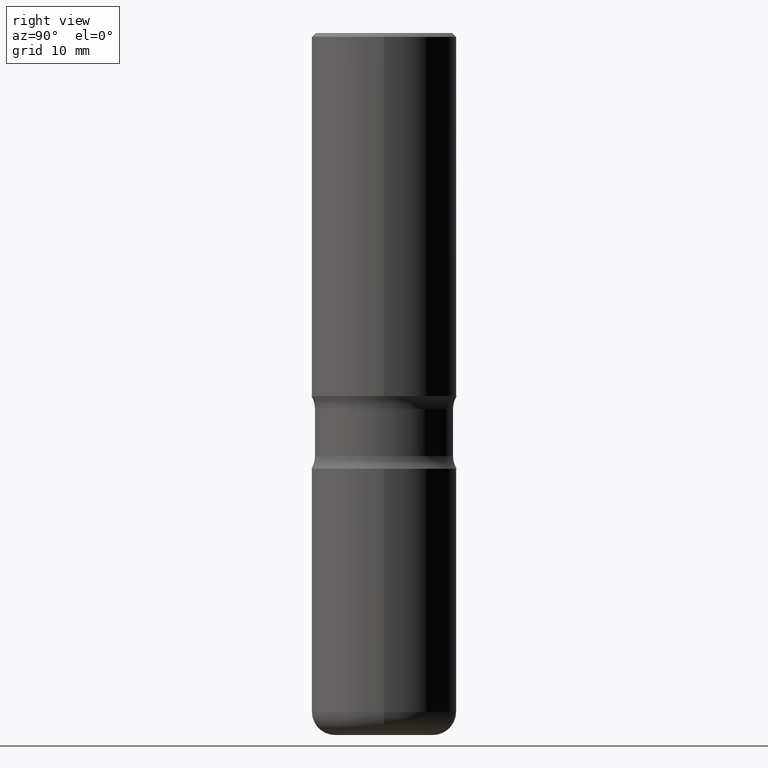
[diagram: clean part render]
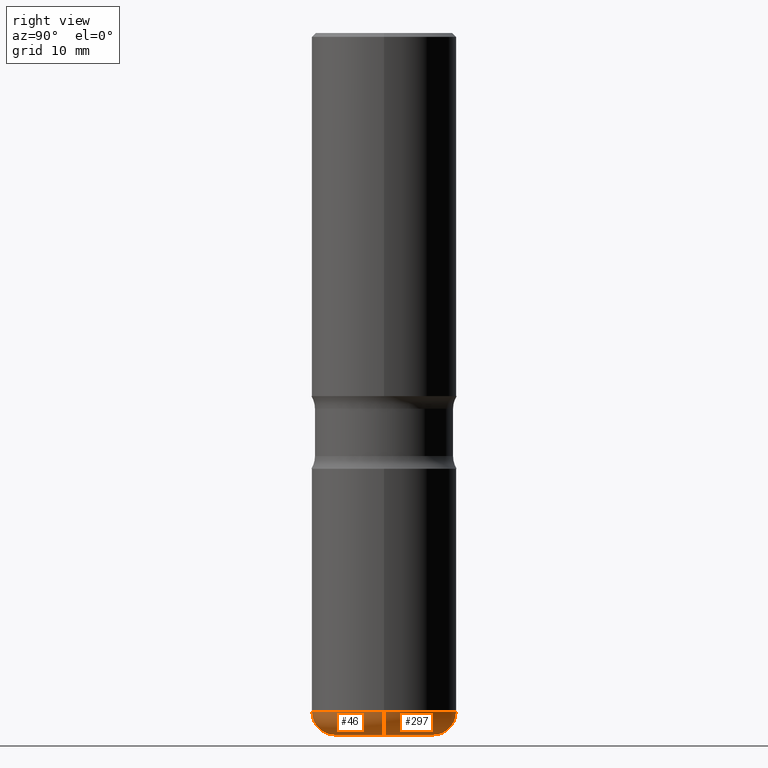
[diagram: same view with one multi-face feature highlighted, each face labeled with its STEP entity id]
A machine part, right view. The highlighted faces form ONE feature: a constant-radius fillet chain: 2 tangent blend faces with common blend radius 3.048 mm. The faces share edges in the B-rep.
Their STEP definitions:
[1] entity #297 (Torus):
#24 = VERTEX_POINT ( 'NONE', #412 ) ;
#30 = DIRECTION ( 'NONE',  ( -2.445468806185136597E-29, 3.491481338843145583E-15, 1.000000000000000000 ) ) ;
#49 = FACE_OUTER_BOUND ( 'NONE', #402, .T. ) ;
#72 = DIRECTION ( 'NONE',  ( 1.000000000000000000, -6.982962677686267499E-15, 0.000000000000000000 ) ) ;
#80 = DIRECTION ( 'NONE',  ( 7.105427357601001859E-15, 1.000000000000000000, -3.491481338843145583E-15 ) ) ;
#82 = CIRCLE ( 'NONE', #399, 0.1199999999999998845 ) ;
#98 = DIRECTION ( 'NONE',  ( -2.445468806185136597E-29, 3.491481338843145583E-15, 1.000000000000000000 ) ) ;
#157 = VERTEX_POINT ( 'NONE', #392 ) ;
#158 = CARTESIAN_POINT ( 'NONE',  ( 0.2550000000000003375, -1.401829757545522428E-14, -3.504999999999999893 ) ) ;
#181 = CARTESIAN_POINT ( 'NONE',  ( -0.3750000000000002220, -9.573106833544843947E-15, -3.504999999999999893 ) ) ;
#194 = ORIENTED_EDGE ( 'NONE', *, *, #548, .T. ) ;
#200 = VERTEX_POINT ( 'NONE', #276 ) ;
#201 = DIRECTION ( 'NONE',  ( -2.445468806185136597E-29, 3.491481338843145583E-15, 1.000000000000000000 ) ) ;
#213 = DIRECTION ( 'NONE',  ( -1.000000000000000000, 7.105427357600997914E-15, 0.000000000000000000 ) ) ;
#226 = CARTESIAN_POINT ( 'NONE',  ( 8.571368165678902740E-29, -1.223764209264522438E-14, -3.504999999999999893 ) ) ;
#255 = CARTESIAN_POINT ( 'NONE',  ( -0.2550000000000003375, -1.042575811645696493E-14, -3.504999999999999893 ) ) ;
#261 = VERTEX_POINT ( 'NONE', #181 ) ;
#276 = CARTESIAN_POINT ( 'NONE',  ( 0.2550000000000003375, -1.443727533611640092E-14, -3.624999999999999556 ) ) ;
#294 = CIRCLE ( 'NONE', #378, 0.1199999999999998845 ) ;
#297 = ADVANCED_FACE ( 'NONE', ( #49 ), #451, .T. ) ;
#299 = ORIENTED_EDGE ( 'NONE', *, *, #541, .T. ) ;
#314 = CIRCLE ( 'NONE', #467, 0.2550000000000003375 ) ;
#334 = DIRECTION ( 'NONE',  ( 1.000000000000000000, -6.982962677686258822E-15, 0.000000000000000000 ) ) ;
#343 = CIRCLE ( 'NONE', #503, 0.3750000000000002776 ) ;
#357 = AXIS2_PLACEMENT_3D ( 'NONE', #226, #98, #472 ) ;
#378 = AXIS2_PLACEMENT_3D ( 'NONE', #255, #80, #213 ) ;
#392 = CARTESIAN_POINT ( 'NONE',  ( -0.2550000000000003375, -1.020892135533149591E-14, -3.624999999999999556 ) ) ;
#395 = EDGE_CURVE ( 'NONE', #200, #24, #82, .T. ) ;
#399 = AXIS2_PLACEMENT_3D ( 'NONE', #158, #543, #334 ) ;
#402 = EDGE_LOOP ( 'NONE', ( #194, #299, #528, #557 ) ) ;
#412 = CARTESIAN_POINT ( 'NONE',  ( 0.3750000000000002220, -1.485625309677757439E-14, -3.504999999999999893 ) ) ;
#421 = DIRECTION ( 'NONE',  ( 1.000000000000000000, -6.982962677686266711E-15, 0.000000000000000000 ) ) ;
#446 = EDGE_CURVE ( 'NONE', #24, #261, #343, .T. ) ;
#448 = CARTESIAN_POINT ( 'NONE',  ( 8.571368165678902740E-29, -1.223764209264522438E-14, -3.504999999999999893 ) ) ;
#451 = TOROIDAL_SURFACE ( 'NONE', #357, 0.2550000000000003375, 0.1199999999999998845 ) ;
#462 = CARTESIAN_POINT ( 'NONE',  ( 8.864824422421120163E-29, -1.265661985330640259E-14, -3.624999999999999556 ) ) ;
#467 = AXIS2_PLACEMENT_3D ( 'NONE', #462, #30, #421 ) ;
#472 = DIRECTION ( 'NONE',  ( 1.000000000000000000, -6.982962677686263555E-15, 4.883557194083111219E-29 ) ) ;
#503 = AXIS2_PLACEMENT_3D ( 'NONE', #448, #201, #72 ) ;
#528 = ORIENTED_EDGE ( 'NONE', *, *, #446, .F. ) ;
#541 = EDGE_CURVE ( 'NONE', #157, #261, #294, .T. ) ;
#543 = DIRECTION ( 'NONE',  ( -6.982962677686266711E-15, -1.000000000000000000, 3.491481338843145583E-15 ) ) ;
#548 = EDGE_CURVE ( 'NONE', #200, #157, #314, .T. ) ;
#557 = ORIENTED_EDGE ( 'NONE', *, *, #395, .F. ) ;
[2] entity #46 (Torus):
#24 = VERTEX_POINT ( 'NONE', #412 ) ;
#28 = CIRCLE ( 'NONE', #510, 0.3750000000000002776 ) ;
#46 = ADVANCED_FACE ( 'NONE', ( #497 ), #417, .T. ) ;
#62 = ORIENTED_EDGE ( 'NONE', *, *, #541, .F. ) ;
#80 = DIRECTION ( 'NONE',  ( 7.105427357601001859E-15, 1.000000000000000000, -3.491481338843145583E-15 ) ) ;
#82 = CIRCLE ( 'NONE', #399, 0.1199999999999998845 ) ;
#83 = CARTESIAN_POINT ( 'NONE',  ( 8.571368165678902740E-29, -1.223764209264522438E-14, -3.504999999999999893 ) ) ;
#85 = DIRECTION ( 'NONE',  ( -2.445468806185136597E-29, 3.491481338843145583E-15, 1.000000000000000000 ) ) ;
#125 = AXIS2_PLACEMENT_3D ( 'NONE', #83, #85, #208 ) ;
#146 = DIRECTION ( 'NONE',  ( -2.445468806185136597E-29, 3.491481338843145583E-15, 1.000000000000000000 ) ) ;
#157 = VERTEX_POINT ( 'NONE', #392 ) ;
#158 = CARTESIAN_POINT ( 'NONE',  ( 0.2550000000000003375, -1.401829757545522428E-14, -3.504999999999999893 ) ) ;
#165 = EDGE_CURVE ( 'NONE', #261, #24, #28, .T. ) ;
#174 = AXIS2_PLACEMENT_3D ( 'NONE', #230, #146, #480 ) ;
#181 = CARTESIAN_POINT ( 'NONE',  ( -0.3750000000000002220, -9.573106833544843947E-15, -3.504999999999999893 ) ) ;
#200 = VERTEX_POINT ( 'NONE', #276 ) ;
#208 = DIRECTION ( 'NONE',  ( 1.000000000000000000, -6.982962677686263555E-15, 4.883557194083111219E-29 ) ) ;
#213 = DIRECTION ( 'NONE',  ( -1.000000000000000000, 7.105427357600997914E-15, 0.000000000000000000 ) ) ;
#228 = EDGE_CURVE ( 'NONE', #157, #200, #376, .T. ) ;
#230 = CARTESIAN_POINT ( 'NONE',  ( 8.864824422421120163E-29, -1.265661985330640259E-14, -3.624999999999999556 ) ) ;
#231 = ORIENTED_EDGE ( 'NONE', *, *, #395, .T. ) ;
#255 = CARTESIAN_POINT ( 'NONE',  ( -0.2550000000000003375, -1.042575811645696493E-14, -3.504999999999999893 ) ) ;
#261 = VERTEX_POINT ( 'NONE', #181 ) ;
#263 = ORIENTED_EDGE ( 'NONE', *, *, #165, .F. ) ;
#269 = DIRECTION ( 'NONE',  ( -2.445468806185136597E-29, 3.491481338843145583E-15, 1.000000000000000000 ) ) ;
#273 = DIRECTION ( 'NONE',  ( 1.000000000000000000, -6.982962677686267499E-15, 0.000000000000000000 ) ) ;
#276 = CARTESIAN_POINT ( 'NONE',  ( 0.2550000000000003375, -1.443727533611640092E-14, -3.624999999999999556 ) ) ;
#294 = CIRCLE ( 'NONE', #378, 0.1199999999999998845 ) ;
#334 = DIRECTION ( 'NONE',  ( 1.000000000000000000, -6.982962677686258822E-15, 0.000000000000000000 ) ) ;
#376 = CIRCLE ( 'NONE', #174, 0.2550000000000003375 ) ;
#378 = AXIS2_PLACEMENT_3D ( 'NONE', #255, #80, #213 ) ;
#384 = ORIENTED_EDGE ( 'NONE', *, *, #228, .T. ) ;
#392 = CARTESIAN_POINT ( 'NONE',  ( -0.2550000000000003375, -1.020892135533149591E-14, -3.624999999999999556 ) ) ;
#395 = EDGE_CURVE ( 'NONE', #200, #24, #82, .T. ) ;
#399 = AXIS2_PLACEMENT_3D ( 'NONE', #158, #543, #334 ) ;
#412 = CARTESIAN_POINT ( 'NONE',  ( 0.3750000000000002220, -1.485625309677757439E-14, -3.504999999999999893 ) ) ;
#417 = TOROIDAL_SURFACE ( 'NONE', #125, 0.2550000000000003375, 0.1199999999999998845 ) ;
#440 = EDGE_LOOP ( 'NONE', ( #62, #384, #231, #263 ) ) ;
#480 = DIRECTION ( 'NONE',  ( 1.000000000000000000, -6.982962677686266711E-15, 0.000000000000000000 ) ) ;
#497 = FACE_OUTER_BOUND ( 'NONE', #440, .T. ) ;
#510 = AXIS2_PLACEMENT_3D ( 'NONE', #531, #269, #273 ) ;
#531 = CARTESIAN_POINT ( 'NONE',  ( 8.571368165678902740E-29, -1.223764209264522438E-14, -3.504999999999999893 ) ) ;
#541 = EDGE_CURVE ( 'NONE', #157, #261, #294, .T. ) ;
#543 = DIRECTION ( 'NONE',  ( -6.982962677686266711E-15, -1.000000000000000000, 3.491481338843145583E-15 ) ) ;